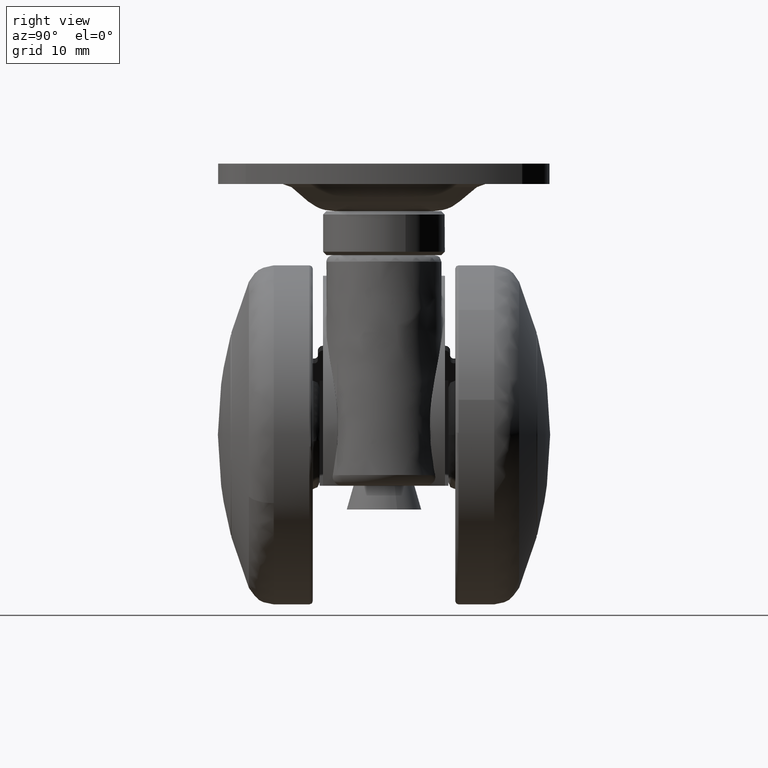
[diagram: clean part render]
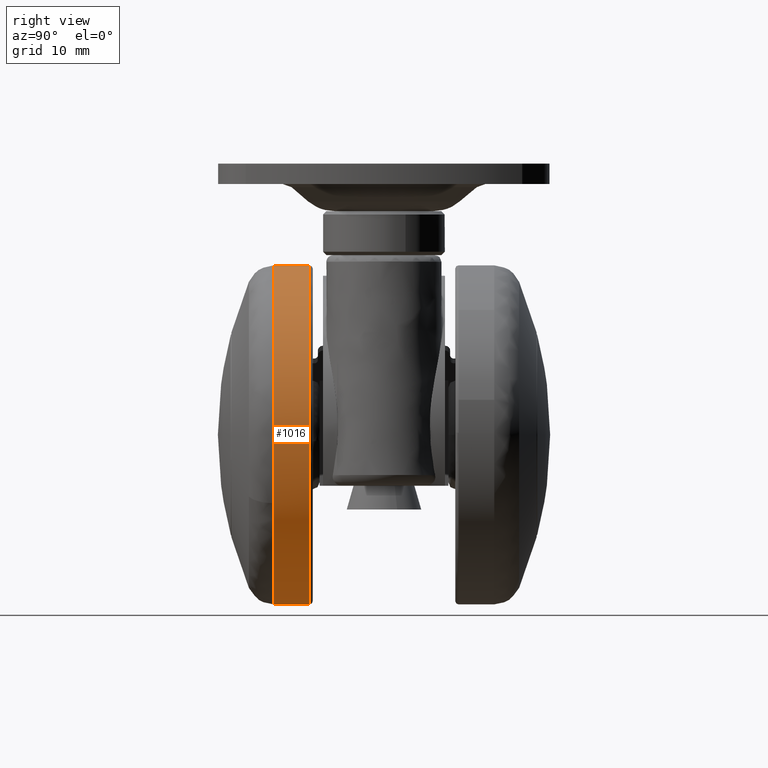
[diagram: same view with one face highlighted and labeled with its STEP entity id]
A machine part, right view. The second image highlights one B-rep face of the part: STEP entity #1016.
In plain terms, the highlighted face is a freeform B-spline surface patch.
Its self-contained STEP definition (entity closure, byte-faithful):
#816=CARTESIAN_POINT('',(-24.456277193517327,-10.868760374954357,5.185605638095166));
#817=CARTESIAN_POINT('',(-27.125405001298383,-10.868760374954357,-7.402495750192665));
#818=CARTESIAN_POINT('',(-18.431933420253088,-10.868760374954361,-16.889755190391501));
#819=CARTESIAN_POINT('',(-1.542178229861583,-10.868760374954357,-35.321688610644600));
#820=CARTESIAN_POINT('',(16.889755190391512,-10.868760374954361,-18.431933420253088));
#821=CARTESIAN_POINT('',(35.321688610644600,-10.868760374954357,-1.542178229861581));
#822=CARTESIAN_POINT('',(18.431933420253088,-10.868760374954361,16.889755190391512));
#823=CARTESIAN_POINT('',(1.542178229861583,-10.868760374954357,35.321688610644600));
#824=CARTESIAN_POINT('',(-16.889755190391512,-10.868760374954361,18.431933420253099));
#825=CARTESIAN_POINT('',(-24.456277193517327,-16.384105615660754,5.185605638095166));
#826=CARTESIAN_POINT('',(-27.125405001298383,-16.384105615660754,-7.402495750192665));
#827=CARTESIAN_POINT('',(-18.431933420253088,-16.384105615660751,-16.889755190391501));
#828=CARTESIAN_POINT('',(-1.542178229861583,-16.384105615660761,-35.321688610644600));
#829=CARTESIAN_POINT('',(16.889755190391512,-16.384105615660751,-18.431933420253088));
#830=CARTESIAN_POINT('',(35.321688610644600,-16.384105615660761,-1.542178229861581));
#831=CARTESIAN_POINT('',(18.431933420253088,-16.384105615660751,16.889755190391512));
#832=CARTESIAN_POINT('',(1.542178229861583,-16.384105615660761,35.321688610644600));
#833=CARTESIAN_POINT('',(-16.889755190391512,-16.384105615660751,18.431933420253099));
#841=(BOUNDED_SURFACE()B_SPLINE_SURFACE(2,1,((#816,#825),(#817,#826),(#818,#827),(#819,#828),(#820,#829),(#821,#830),(#822,#831),(#823,#832),(#824,#833)),.UNSPECIFIED.,.F.,.F.,.U.)B_SPLINE_SURFACE_WITH_KNOTS((3,2,2,2,3),(2,2),(0.0,24.852813742385699,66.274169979695202,107.695526217004700,149.116882454314210),(0.0,5.515345240706400),.UNSPECIFIED.)GEOMETRIC_REPRESENTATION_ITEM()RATIONAL_B_SPLINE_SURFACE(((0.859411254969543,0.859411254969543),(0.824264068711928,0.824264068711928),(1.0,1.0),(0.707106781186548,0.707106781186548),(1.0,1.0),(0.707106781186548,0.707106781186548),(1.0,1.0),(0.707106781186548,0.707106781186548),(1.0,1.0)))REPRESENTATION_ITEM('')SURFACE());
#842=CARTESIAN_POINT('',(-24.456279230536150,-10.999999999964761,5.185596031117166));
#843=VERTEX_POINT('',#842);
#844=CARTESIAN_POINT('',(-24.998026105095359,-10.999999999956289,0.314150997086708));
#845=VERTEX_POINT('',#844);
#846=CARTESIAN_POINT('',(-24.456279230536150,-10.999999999964761,5.185596031117166));
#847=CARTESIAN_POINT('',(-24.967080987085478,-10.999999999960654,2.776555620986991));
#848=CARTESIAN_POINT('',(-24.998026105095363,-10.999999999956293,0.314150997086708));
#856=(BOUNDED_CURVE()B_SPLINE_CURVE(2,(#846,#847,#848),.UNSPECIFIED.,.F.,.U.)B_SPLINE_CURVE_WITH_KNOTS((3,3),(0.714472189735848,0.747784295921687),.UNSPECIFIED.)CURVE()GEOMETRIC_REPRESENTATION_ITEM()RATIONAL_B_SPLINE_CURVE((0.928583473766521,0.956518523810324,0.994854295643917))REPRESENTATION_ITEM(''));
#857=EDGE_CURVE('',#843,#845,#856,.T.);
#858=ORIENTED_EDGE('',*,*,#857,.T.);
#859=CARTESIAN_POINT('',(0.0,-11.0,-25.0));
#860=VERTEX_POINT('',#859);
#861=CARTESIAN_POINT('',(-24.998026105095359,-10.999999999956293,0.314150997086708));
#862=CARTESIAN_POINT('',(-24.999999999999996,-11.000000000000004,0.157081699800146));
#863=CARTESIAN_POINT('',(-25.0,-11.0,1.789254E-015));
#864=CARTESIAN_POINT('',(-25.000000000000004,-11.0,-25.000000000000004));
#865=CARTESIAN_POINT('',(0.0,-11.0,-25.0));
#873=(BOUNDED_CURVE()B_SPLINE_CURVE(2,(#861,#862,#863,#864,#865),.UNSPECIFIED.,.F.,.U.)B_SPLINE_CURVE_WITH_KNOTS((3,2,3),(0.747784295921687,0.750000000000000,1.0),.UNSPECIFIED.)CURVE()GEOMETRIC_REPRESENTATION_ITEM()RATIONAL_B_SPLINE_CURVE((0.994854295643918,0.997404141202260,1.0,0.707106781186547,1.0))REPRESENTATION_ITEM(''));
#874=EDGE_CURVE('',#845,#860,#873,.T.);
#875=ORIENTED_EDGE('',*,*,#874,.T.);
#876=CARTESIAN_POINT('',(24.939141846008731,-10.999999999974751,-1.743331289415805));
#877=VERTEX_POINT('',#876);
#878=CARTESIAN_POINT('',(0.0,-11.0,-25.0));
#879=CARTESIAN_POINT('',(23.313421181609719,-11.0,-24.999999999999993));
#880=CARTESIAN_POINT('',(24.939141846008734,-10.999999999974751,-1.743331289415806));
#888=(BOUNDED_CURVE()B_SPLINE_CURVE(2,(#878,#879,#880),.UNSPECIFIED.,.F.,.U.)B_SPLINE_CURVE_WITH_KNOTS((3,3),(0.0,0.237833686534724),.UNSPECIFIED.)CURVE()GEOMETRIC_REPRESENTATION_ITEM()RATIONAL_B_SPLINE_CURVE((1.0,0.721360504034300,0.972879876386199))REPRESENTATION_ITEM(''));
#889=EDGE_CURVE('',#860,#877,#888,.T.);
#890=ORIENTED_EDGE('',*,*,#889,.T.);
#891=CARTESIAN_POINT('',(0.0,-11.0,25.0));
#892=VERTEX_POINT('',#891);
#893=CARTESIAN_POINT('',(24.939141846008731,-10.999999999974753,-1.743331289415805));
#894=CARTESIAN_POINT('',(25.000000000000004,-10.999999999999996,-0.872727896897664));
#895=CARTESIAN_POINT('',(25.0,-11.0,1.789254E-015));
#896=CARTESIAN_POINT('',(25.000000000000004,-11.0,25.000000000000004));
#897=CARTESIAN_POINT('',(0.0,-11.0,25.0));
#905=(BOUNDED_CURVE()B_SPLINE_CURVE(2,(#893,#894,#895,#896,#897),.UNSPECIFIED.,.F.,.U.)B_SPLINE_CURVE_WITH_KNOTS((3,2,3),(0.237833686534724,0.250000000000000,0.500000000000000),.UNSPECIFIED.)CURVE()GEOMETRIC_REPRESENTATION_ITEM()RATIONAL_B_SPLINE_CURVE((0.972879876386198,0.985746277152248,1.0,0.707106781186547,1.0))REPRESENTATION_ITEM(''));
#906=EDGE_CURVE('',#877,#892,#905,.T.);
#907=ORIENTED_EDGE('',*,*,#906,.T.);
#908=CARTESIAN_POINT('',(-16.889754628578689,-10.999999999988360,18.431933935059281));
#909=VERTEX_POINT('',#908);
#910=CARTESIAN_POINT('',(0.0,-11.0,25.0));
#911=CARTESIAN_POINT('',(-9.721967419078391,-11.0,25.000000000000007));
#912=CARTESIAN_POINT('',(-16.889754628578697,-10.999999999988358,18.431933935059281));
#920=(BOUNDED_CURVE()B_SPLINE_CURVE(2,(#910,#911,#912),.UNSPECIFIED.,.F.,.U.)B_SPLINE_CURVE_WITH_KNOTS((3,3),(0.500000000000000,0.618415199881416),.UNSPECIFIED.)CURVE()GEOMETRIC_REPRESENTATION_ITEM()RATIONAL_B_SPLINE_CURVE((1.0,0.861267963801174,0.853959781973867))REPRESENTATION_ITEM(''));
#921=EDGE_CURVE('',#892,#909,#920,.T.);
#922=ORIENTED_EDGE('',*,*,#921,.T.);
#923=CARTESIAN_POINT('',(-16.889754636638401,-16.249584999999950,18.431933927674301));
#924=VERTEX_POINT('',#923);
#925=CARTESIAN_POINT('',(-16.889754628578689,-10.999999999988360,18.431933935059281));
#926=CARTESIAN_POINT('',(-16.889754636638401,-16.249584999999950,18.431933927674301));
#927=QUASI_UNIFORM_CURVE('',1,(#925,#926),.UNSPECIFIED.,.F.,.U.);
#928=EDGE_CURVE('',#909,#924,#927,.T.);
#929=ORIENTED_EDGE('',*,*,#928,.T.);
#930=CARTESIAN_POINT('',(0.0,-16.249584999999950,25.0));
#931=VERTEX_POINT('',#930);
#932=CARTESIAN_POINT('',(0.0,-16.249584999999950,25.0));
#933=CARTESIAN_POINT('',(-9.721967431663346,-16.249584999999950,25.000000000000014));
#934=CARTESIAN_POINT('',(-16.889754636638401,-16.249584999999946,18.431933927674301));
#942=(BOUNDED_CURVE()B_SPLINE_CURVE(2,(#932,#933,#934),.UNSPECIFIED.,.F.,.U.)B_SPLINE_CURVE_WITH_KNOTS((3,3),(0.500000000000000,0.618415200013438),.UNSPECIFIED.)CURVE()GEOMETRIC_REPRESENTATION_ITEM()RATIONAL_B_SPLINE_CURVE((1.0,0.861267963646502,0.853959781957572))REPRESENTATION_ITEM(''));
#943=EDGE_CURVE('',#931,#924,#942,.T.);
#944=ORIENTED_EDGE('',*,*,#943,.F.);
#945=CARTESIAN_POINT('',(10.072660892846359,-16.249585000033768,22.881029315520831));
#946=VERTEX_POINT('',#945);
#947=CARTESIAN_POINT('',(10.072660892846358,-16.249585000033775,22.881029315520831));
#948=CARTESIAN_POINT('',(5.259212801418675,-16.249584999999950,25.000000000000004));
#949=CARTESIAN_POINT('',(0.0,-16.249584999999950,25.0));
#957=(BOUNDED_CURVE()B_SPLINE_CURVE(2,(#947,#948,#949),.UNSPECIFIED.,.F.,.U.)B_SPLINE_CURVE_WITH_KNOTS((3,3),(0.431585009861387,0.500000000000000),.UNSPECIFIED.)CURVE()GEOMETRIC_REPRESENTATION_ITEM()RATIONAL_B_SPLINE_CURVE((0.883563120518079,0.919846853292844,1.0))REPRESENTATION_ITEM(''));
#958=EDGE_CURVE('',#946,#931,#957,.T.);
#959=ORIENTED_EDGE('',*,*,#958,.F.);
#960=CARTESIAN_POINT('',(22.881029315520820,-16.249585000033768,-10.072660892846359));
#961=VERTEX_POINT('',#960);
#962=CARTESIAN_POINT('',(22.881029315520824,-16.249585000033772,-10.072660892846356));
#963=CARTESIAN_POINT('',(25.0,-16.249584999999946,-5.259212801418672));
#964=CARTESIAN_POINT('',(25.0,-16.249584999999950,1.789254E-015));
#965=CARTESIAN_POINT('',(25.0,-16.249584999999946,16.309732946568776));
#966=CARTESIAN_POINT('',(10.072660892846358,-16.249585000033772,22.881029315520824));
#974=(BOUNDED_CURVE()B_SPLINE_CURVE(2,(#962,#963,#964,#965,#966),.UNSPECIFIED.,.F.,.U.)B_SPLINE_CURVE_WITH_KNOTS((3,2,3),(0.181585009861387,0.250000000000000,0.431585009861387),.UNSPECIFIED.)CURVE()GEOMETRIC_REPRESENTATION_ITEM()RATIONAL_B_SPLINE_CURVE((0.883563120518079,0.919846853292844,1.0,0.787259927893703,0.883563120518079))REPRESENTATION_ITEM(''));
#975=EDGE_CURVE('',#961,#946,#974,.T.);
#976=ORIENTED_EDGE('',*,*,#975,.F.);
#977=CARTESIAN_POINT('',(0.0,-16.249584999999950,-25.0));
#978=VERTEX_POINT('',#977);
#979=CARTESIAN_POINT('',(0.0,-16.249584999999950,-25.0));
#980=CARTESIAN_POINT('',(16.309732946568758,-16.249584999999954,-24.999999999999993));
#981=CARTESIAN_POINT('',(22.881029315520824,-16.249585000033772,-10.072660892846356));
#989=(BOUNDED_CURVE()B_SPLINE_CURVE(2,(#979,#980,#981),.UNSPECIFIED.,.F.,.U.)B_SPLINE_CURVE_WITH_KNOTS((3,3),(0.0,0.181585009861387),.UNSPECIFIED.)CURVE()GEOMETRIC_REPRESENTATION_ITEM()RATIONAL_B_SPLINE_CURVE((1.0,0.787259927893703,0.883563120518079))REPRESENTATION_ITEM(''));
#990=EDGE_CURVE('',#978,#961,#989,.T.);
#991=ORIENTED_EDGE('',*,*,#990,.F.);
#992=CARTESIAN_POINT('',(-24.456279329374659,-16.249584999999950,5.185595564975722));
#993=VERTEX_POINT('',#992);
#994=CARTESIAN_POINT('',(-24.456279329374659,-16.249584999999954,5.185595564975722));
#995=CARTESIAN_POINT('',(-24.999999999999996,-16.249584999999954,2.621302914054811));
#996=CARTESIAN_POINT('',(-25.0,-16.249584999999950,1.789254E-015));
#997=CARTESIAN_POINT('',(-25.000000000000004,-16.249584999999954,-25.000000000000004));
#998=CARTESIAN_POINT('',(0.0,-16.249584999999950,-25.0));
#1006=(BOUNDED_CURVE()B_SPLINE_CURVE(2,(#994,#995,#996,#997,#998),.UNSPECIFIED.,.F.,.U.)B_SPLINE_CURVE_WITH_KNOTS((3,2,3),(0.714472192864631,0.750000000000000,1.0),.UNSPECIFIED.)CURVE()GEOMETRIC_REPRESENTATION_ITEM()RATIONAL_B_SPLINE_CURVE((0.928583479014025,0.958376584842953,1.0,0.707106781186547,1.0))REPRESENTATION_ITEM(''));
#1007=EDGE_CURVE('',#993,#978,#1006,.T.);
#1008=ORIENTED_EDGE('',*,*,#1007,.F.);
#1009=CARTESIAN_POINT('',(-24.456279230536150,-10.999999999964761,5.185596031117166));
#1010=CARTESIAN_POINT('',(-24.456279329374659,-16.249584999999950,5.185595564975722));
#1011=QUASI_UNIFORM_CURVE('',1,(#1009,#1010),.UNSPECIFIED.,.F.,.U.);
#1012=EDGE_CURVE('',#843,#993,#1011,.T.);
#1013=ORIENTED_EDGE('',*,*,#1012,.F.);
#1014=EDGE_LOOP('',(#858,#875,#890,#907,#922,#929,#944,#959,#976,#991,#1008,#1013));
#1015=FACE_OUTER_BOUND('',#1014,.T.);
#1016=ADVANCED_FACE('',(#1015),#841,.T.);